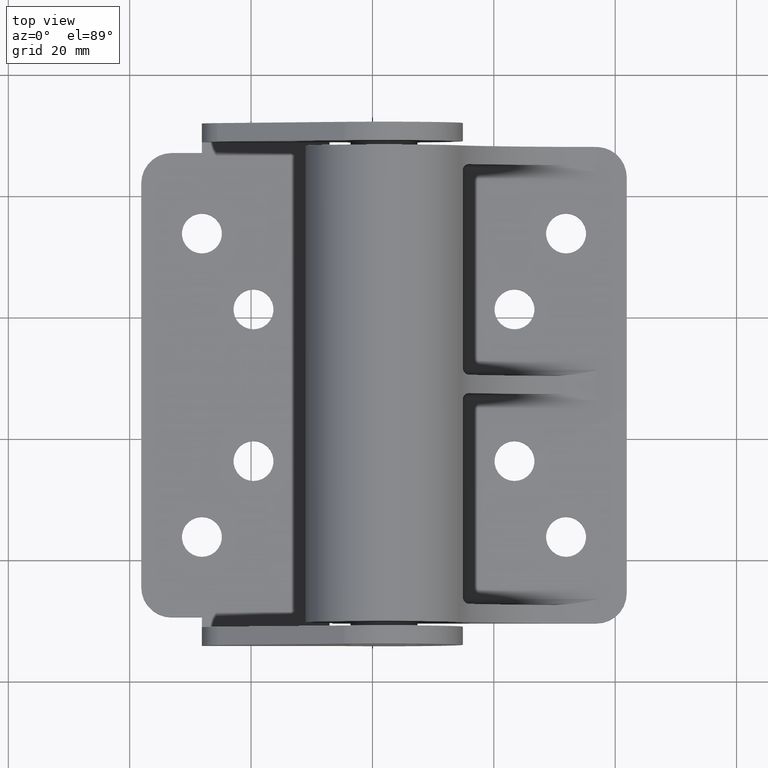
[diagram: clean part render]
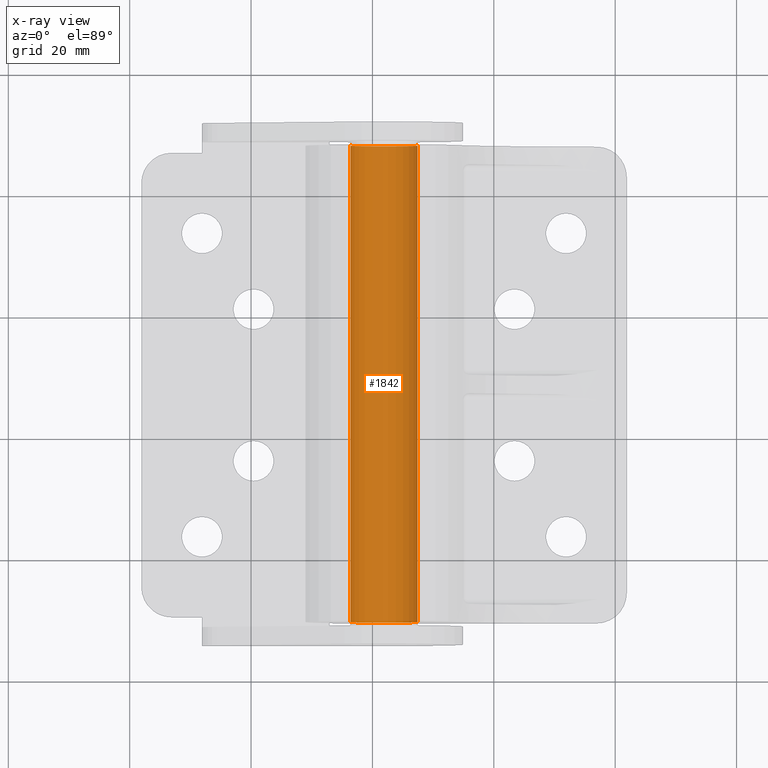
[diagram: x-ray — body ghosted, one internal face saturated and labeled with its STEP entity id]
A machine part, top view, then the same camera in x-ray: the body is ghosted and one INTERNAL B-rep face — a face not visible from any outside direction — is saturated and labeled: STEP entity #1842.
In plain terms, the highlighted cylindrical surface (edge-blend (fillet) strip) has radius 5.5 mm, axis along (0, 1, 0).
Its self-contained STEP definition (entity closure, byte-faithful):
#16 = CARTESIAN_POINT ( 'NONE',  ( -5.500000000000000000, 6.735557395310442000E-016, -917.0000000000000000 ) ) ;
#68 = VERTEX_POINT ( 'NONE', #3848 ) ;
#115 = ORIENTED_EDGE ( 'NONE', *, *, #2521, .F. ) ;
#118 = CARTESIAN_POINT ( 'NONE',  ( -5.500000000000000000, 6.735557395310442000E-016, 82.25000000000000000 ) ) ;
#183 = EDGE_LOOP ( 'NONE', ( #115, #3508, #2775, #2625 ) ) ;
#217 = CARTESIAN_POINT ( 'NONE',  ( 5.500000000000000000, 0.0000000000000000000, 3.750000000000000000 ) ) ;
#286 = EDGE_CURVE ( 'NONE', #2807, #68, #2587, .T. ) ;
#386 = DIRECTION ( 'NONE',  ( 0.0000000000000000000, 0.0000000000000000000, 1.000000000000000000 ) ) ;
#543 = EDGE_CURVE ( 'NONE', #2807, #2905, #1613, .T. ) ;
#749 = CARTESIAN_POINT ( 'NONE',  ( 5.500000000000000000, 0.0000000000000000000, -917.0000000000000000 ) ) ;
#877 = VECTOR ( 'NONE', #2732, 1000.000000000000000 ) ;
#1420 = CARTESIAN_POINT ( 'NONE',  ( -5.500000000000000000, 6.735557395310442000E-016, 3.750000000000000000 ) ) ;
#1540 = CIRCLE ( 'NONE', #3224, 5.500000000000000000 ) ;
#1613 = CIRCLE ( 'NONE', #2313, 5.500000000000000000 ) ;
#1618 = DIRECTION ( 'NONE',  ( 0.0000000000000000000, 0.0000000000000000000, 1.000000000000000000 ) ) ;
#1680 = DIRECTION ( 'NONE',  ( 1.000000000000000000, 0.0000000000000000000, 0.0000000000000000000 ) ) ;
#1705 = CARTESIAN_POINT ( 'NONE',  ( 0.0000000000000000000, 0.0000000000000000000, 3.750000000000000000 ) ) ;
#1842 = ADVANCED_FACE ( 'NONE', ( #2294 ), #3794, .F. ) ;
#2103 = DIRECTION ( 'NONE',  ( 0.0000000000000000000, 0.0000000000000000000, 1.000000000000000000 ) ) ;
#2160 = DIRECTION ( 'NONE',  ( 1.000000000000000000, 0.0000000000000000000, 0.0000000000000000000 ) ) ;
#2178 = CARTESIAN_POINT ( 'NONE',  ( 0.0000000000000000000, 0.0000000000000000000, 82.25000000000000000 ) ) ;
#2198 = DIRECTION ( 'NONE',  ( 0.0000000000000000000, 0.0000000000000000000, 1.000000000000000000 ) ) ;
#2294 = FACE_OUTER_BOUND ( 'NONE', #183, .T. ) ;
#2313 = AXIS2_PLACEMENT_3D ( 'NONE', #1705, #1618, #1680 ) ;
#2498 = DIRECTION ( 'NONE',  ( 1.000000000000000000, 0.0000000000000000000, 0.0000000000000000000 ) ) ;
#2521 = EDGE_CURVE ( 'NONE', #2905, #2746, #3394, .T. ) ;
#2587 = LINE ( 'NONE', #749, #877 ) ;
#2625 = ORIENTED_EDGE ( 'NONE', *, *, #3154, .T. ) ;
#2669 = VECTOR ( 'NONE', #2103, 1000.000000000000000 ) ;
#2732 = DIRECTION ( 'NONE',  ( 0.0000000000000000000, 0.0000000000000000000, 1.000000000000000000 ) ) ;
#2746 = VERTEX_POINT ( 'NONE', #118 ) ;
#2775 = ORIENTED_EDGE ( 'NONE', *, *, #286, .T. ) ;
#2807 = VERTEX_POINT ( 'NONE', #217 ) ;
#2842 = CARTESIAN_POINT ( 'NONE',  ( 0.0000000000000000000, 0.0000000000000000000, -917.0000000000000000 ) ) ;
#2905 = VERTEX_POINT ( 'NONE', #1420 ) ;
#3154 = EDGE_CURVE ( 'NONE', #68, #2746, #1540, .T. ) ;
#3224 = AXIS2_PLACEMENT_3D ( 'NONE', #2178, #386, #2498 ) ;
#3394 = LINE ( 'NONE', #16, #2669 ) ;
#3508 = ORIENTED_EDGE ( 'NONE', *, *, #543, .F. ) ;
#3585 = AXIS2_PLACEMENT_3D ( 'NONE', #2842, #2198, #2160 ) ;
#3794 = CYLINDRICAL_SURFACE ( 'NONE', #3585, 5.500000000000000000 ) ;
#3848 = CARTESIAN_POINT ( 'NONE',  ( 5.500000000000000000, 0.0000000000000000000, 82.25000000000000000 ) ) ;